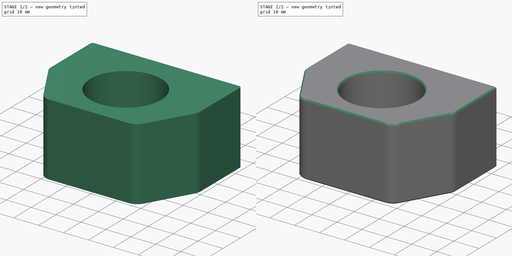
[diagram: build sequence overview — one tinted view per stage of 2, left to right]
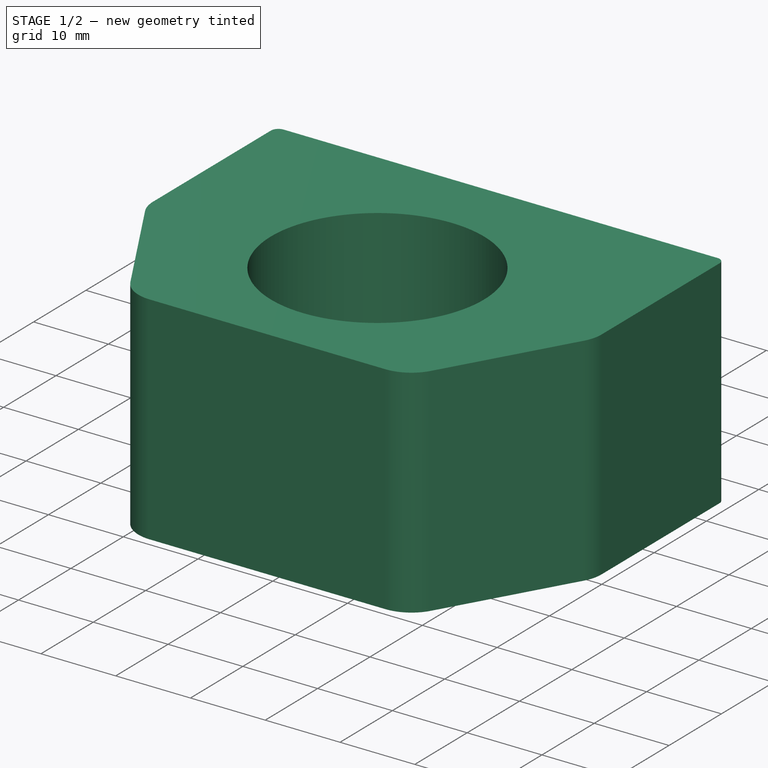
[diagram: stage 1 of 2 — iso view after this stage's code; geometry added in this stage tinted green]
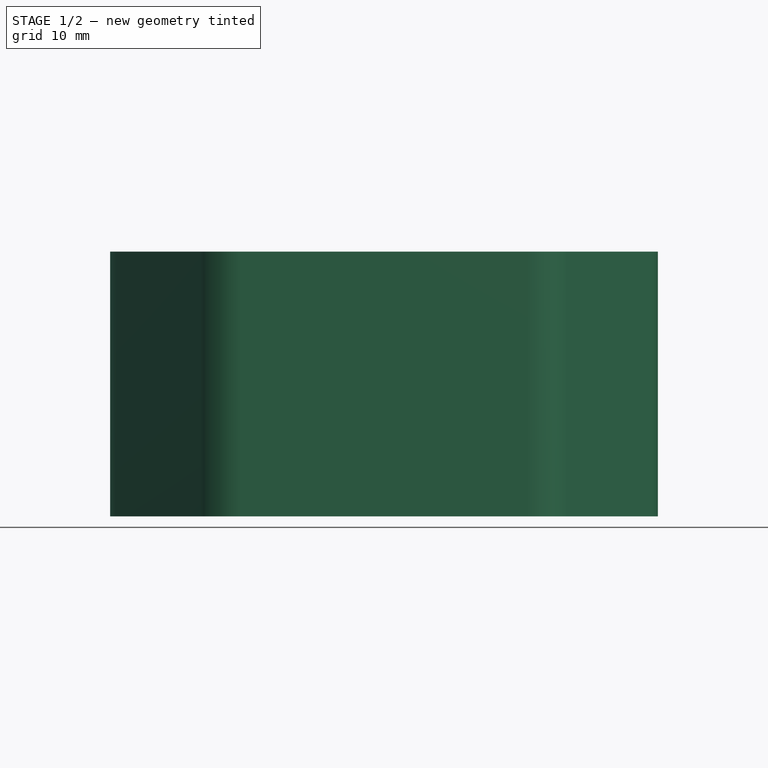
[diagram: stage 1 of 2 — front view after this stage's code; geometry added in this stage tinted green]
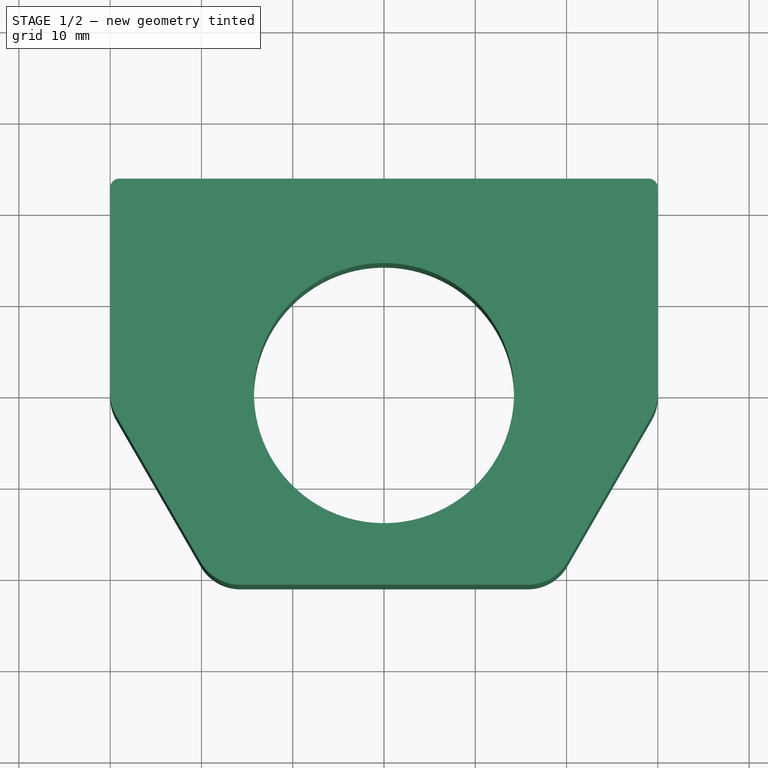
[diagram: stage 1 of 2 — top view after this stage's code; geometry added in this stage tinted green]
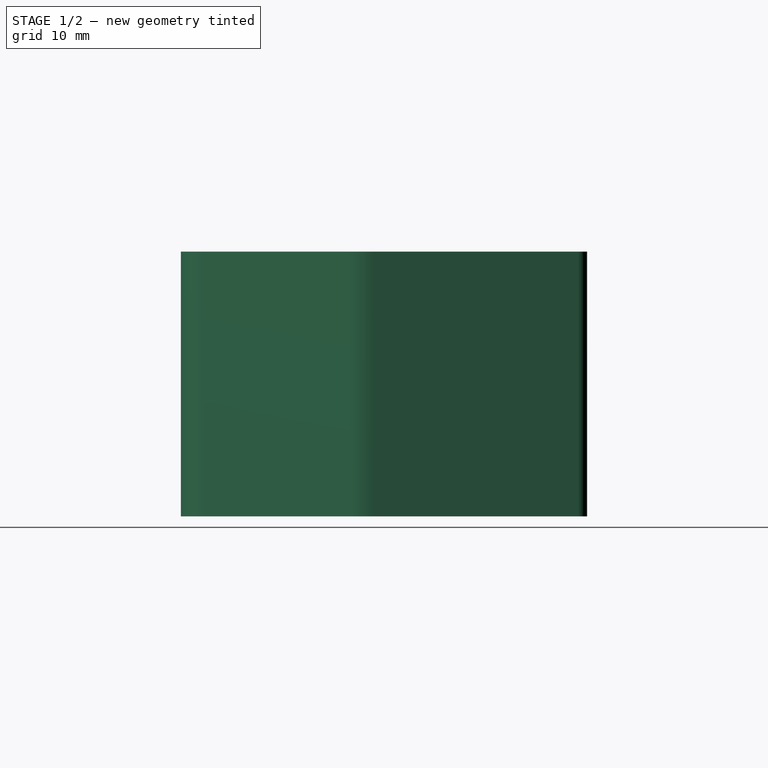
[diagram: stage 1 of 2 — right view after this stage's code; geometry added in this stage tinted green]
FCSTD DOCUMENT  (FreeCAD 0.21R38887 (Git))
Label: КронштейнГайки
License: All rights reserved
LicenseURL: http://en.wikipedia.org/wiki/All_rights_reserved
objects: Sketcher::SketchObject×3, PartDesign::Hole×2, PartDesign::Pad×1, PartDesign::Chamfer×1, PartDesign::Body×1
note: 19 computed .brp shape members not serialized (recipe doc carries the construction recipe); baked Part::Feature solids carry a one-line shape summary decoded from their .brp

FEATURE [Sketcher::SketchObject] Sketch
  ArcFitTolerance = 0
  ExternalBSplineMaxDegree = 0
  ExternalBSplineTolerance = 0
  FullyConstrained = true
  InternalTolerance = 1e-06
  InvalidShape = false
  MakeInternals = false
  MapMode = 2
  TreeRank = 171
  ValidateShape = false
  sketch-geometry (17):
    g0: LineSegment StartX=-29 StartY=23.5 StartZ=0 EndX=29 EndY=23.5 EndZ=0
    g1: LineSegment StartX=-30 StartY=22.5 StartZ=0 EndX=-30 EndY=0 EndZ=0
    g2: LineSegment StartX=30 StartY=22.5 StartZ=0 EndX=30 EndY=0 EndZ=0
    g3: LineSegment StartX=-29.3301 StartY=-2.5 StartZ=0 EndX=-20.0925 EndY=-18.5 EndZ=0
    g4: LineSegment StartX=-15.7624 StartY=-21 StartZ=0 EndX=15.7624 EndY=-21 EndZ=0
    g5: LineSegment StartX=20.0925 StartY=-18.5 StartZ=0 EndX=29.3301 EndY=-2.5 EndZ=0
    g6: Circle CenterX=0 CenterY=0 CenterZ=0 NormalX=0 NormalY=0 NormalZ=1 AngleXU=0 Radius=14.25
    g7: ArcOfCircle CenterX=-15.7624 CenterY=-16 CenterZ=0 NormalX=0 NormalY=0 NormalZ=1 AngleXU=0 Radius=5 StartAngle=3.66519 EndAngle=4.71239
    g8: GeomPoint [constr] X=-18.6491 Y=-21 Z=0
    g9: ArcOfCircle CenterX=15.7624 CenterY=-16 CenterZ=0 NormalX=0 NormalY=0 NormalZ=1 AngleXU=0 Radius=5 StartAngle=4.71239 EndAngle=5.75959
    g10: GeomPoint [constr] X=18.6491 Y=-21 Z=0
    g11: ArcOfCircle CenterX=-25 CenterY=0 CenterZ=0 NormalX=0 NormalY=0 NormalZ=1 AngleXU=0 Radius=5 StartAngle=3.14159 EndAngle=3.66519
    g12: ArcOfCircle CenterX=25 CenterY=0 CenterZ=0 NormalX=0 NormalY=0 NormalZ=1 AngleXU=0 Radius=5 StartAngle=5.75959 EndAngle=6.28319
    g13: ArcOfCircle CenterX=-29 CenterY=22.5 CenterZ=0 NormalX=0 NormalY=0 NormalZ=1 AngleXU=0 Radius=1 StartAngle=1.5708 EndAngle=3.14159
    g14: GeomPoint [constr] X=-30 Y=23.5 Z=0
    g15: ArcOfCircle CenterX=29 CenterY=22.5 CenterZ=0 NormalX=0 NormalY=0 NormalZ=1 AngleXU=0 Radius=1 StartAngle=0 EndAngle=1.5708
    g16: GeomPoint [constr] X=30 Y=23.5 Z=0
  constraints (38):
    c: Vertical(g1)
    c: Vertical(g2)
    c: Coincident(g-1,g6)
    c: Symmetric(g14,g16,g-2)
    c: DistanceX(g14,g16) = 60
    c: Diameter(g6) = 28.5
    c: Distance(g6,g0) = 23.5
    c: Distance(g6,g4) = 21
    c: Angle(g3) = -1.0472
    c: PointOnObject(g8,g3)
    c: PointOnObject(g8,g4)
    c: Tangent(g3,g7) = -1.5708
    c: Tangent(g4,g7) = -1.5708
    c: PointOnObject(g10,g4)
    c: PointOnObject(g10,g5)
    c: Tangent(g4,g9) = -1.5708
    c: Tangent(g5,g9) = -1.5708
    c: Equal(g7,g9)
    c: Radius(g7) = 5
    c: Tangent(g1,g11) = -1.5708
    c: Tangent(g3,g11) = -1.5708
    c: Tangent(g2,g12) = 1.5708
    c: Tangent(g5,g12) = -1.5708
    c: Equal(g11,g12)
    c: Radius(g11) = 5
    c: PointOnObject(g11,g-1)
    c: Symmetric(g4,g4,g-2)
    c: PointOnObject(g14,g1)
    c: PointOnObject(g14,g0)
    c: Tangent(g1,g13) = -1.5708
    c: Tangent(g0,g13) = 1.5708
    c: PointOnObject(g16,g2)
    c: PointOnObject(g16,g0)
    c: Tangent(g2,g15) = 1.5708
    c: Tangent(g0,g15) = 1.5708
    c: Equal(g13,g15)
    c: Radius(g13) = 1
    c: PointOnObject(g12,g-1)
FEATURE [PartDesign::Pad] Pad
  AddSubType = 0
  AlongSketchNormal = false
  AutoTaperInnerAngle = false
  CheckUpToFaceLimits = true
  ClaimChildren = false
  Direction = (0,0,1)
  Fit = 0
  FitJoin = 0
  InnerFit = 0
  InnerFitJoin = 0
  InvalidShape = false
  Length = 29
  Length2 = 100
  Linearize = true
  NewSolid = false
  Profile = -> Sketch
  Suppress = false
  TaperInnerAngle = 0
  TaperInnerAngleRev = 0
  TreeRank = 172
  Type = 0
  ValidateShape = true
  _ProfileBasedVersion = 1
FEATURE [Sketcher::SketchObject] Sketch001
  ArcFitTolerance = 0
  AttachmentSupport = -> [Pad]
  ExternalBSplineMaxDegree = 0
  ExternalBSplineTolerance = 0
  FullyConstrained = true
  InternalTolerance = 1e-06
  InvalidShape = false
  MakeInternals = false
  MapMode = 5
  Placement = pos=(0,0,0) rot=(1,0,0;3.14159rad)
  Support = -> [Pad]
  TreeRank = 173
  ValidateShape = false
  sketch-geometry (15):
    g0: LineSegment [constr] StartX=-19 StartY=0 StartZ=0 EndX=-13.435 EndY=-13.435 EndZ=0
    g1: LineSegment [constr] StartX=-13.435 StartY=-13.435 StartZ=0 EndX=0 EndY=-19 EndZ=0
    g2: LineSegment [constr] StartX=0 StartY=-19 StartZ=0 EndX=13.435 EndY=-13.435 EndZ=0
    g3: LineSegment [constr] StartX=13.435 StartY=-13.435 StartZ=0 EndX=19 EndY=0 EndZ=0
    g4: LineSegment [constr] StartX=19 StartY=0 StartZ=0 EndX=13.435 EndY=13.435 EndZ=0
    g5: LineSegment [constr] StartX=13.435 StartY=13.435 StartZ=0 EndX=0 EndY=19 EndZ=0
    g6: LineSegment [constr] StartX=0 StartY=19 StartZ=0 EndX=-13.435 EndY=13.435 EndZ=0
    g7: LineSegment [constr] StartX=-13.435 StartY=13.435 StartZ=0 EndX=-19 EndY=0 EndZ=0
    g8: Circle [constr] CenterX=0 CenterY=0 CenterZ=0 NormalX=0 NormalY=0 NormalZ=1 AngleXU=0 Radius=19
    g9: Circle CenterX=-19 CenterY=0 CenterZ=0 NormalX=0 NormalY=0 NormalZ=1 AngleXU=0 Radius=2.1
    g10: Circle CenterX=-13.435 CenterY=13.435 CenterZ=0 NormalX=0 NormalY=0 NormalZ=1 AngleXU=0 Radius=2.1
    g11: Circle CenterX=13.435 CenterY=13.435 CenterZ=0 NormalX=0 NormalY=0 NormalZ=1 AngleXU=0 Radius=2.1
    g12: Circle CenterX=19 CenterY=0 CenterZ=0 NormalX=0 NormalY=0 NormalZ=1 AngleXU=0 Radius=2.1
    g13: Circle CenterX=13.435 CenterY=-13.435 CenterZ=0 NormalX=0 NormalY=0 NormalZ=1 AngleXU=0 Radius=2.1
    g14: Circle CenterX=-13.435 CenterY=-13.435 CenterZ=0 NormalX=0 NormalY=0 NormalZ=1 AngleXU=0 Radius=2.1
  constraints (32):
    c: Coincident(g0,g1)
    c: Coincident(g1,g2)
    c: Coincident(g2,g3)
    c: Coincident(g3,g4)
    c: Coincident(g4,g5)
    c: Coincident(g5,g6)
    c: Coincident(g6,g7)
    c: Coincident(g7,g0)
    c: Equal(g0, g1-g7) x7
    c: PointOnObject(g0,g8)
    c: PointOnObject(g1,g8)
    c: PointOnObject(g2,g8)
    c: PointOnObject(g3,g8)
    c: PointOnObject(g4,g8)
    c: PointOnObject(g5,g8)
    c: PointOnObject(g6,g8)
    c: PointOnObject(g7,g8)
    c: Coincident(g8,g-1)
    c: PointOnObject(g7,g-1)
    c: Diameter(g8) = 38
    c: Coincident(g9,g0)
    c: Coincident(g10,g6)
    c: Coincident(g11,g4)
    c: Coincident(g12,g3)
    c: Coincident(g13,g2)
    c: Coincident(g14,g0)
    c: Equal(g9,g10)
    c: Equal(g9,g14)
    c: Equal(g9,g11)
    c: Equal(g9,g12)
    c: Equal(g9,g13)
    c: Diameter(g9) = 4.2
FEATURE [PartDesign::Hole] Hole
  AddSubType = 1
  BaseFeature = -> Pad
  ClaimChildren = false
  CustomThreadClearance = 0
  Depth = 12
  DepthType = 0
  Diameter = 4.2
  DrillForDepth = false
  DrillPoint = 1
  DrillPointAngle = 118
  Fit = 0
  FitJoin = 0
  HoleCutCountersinkAngle = 90
  HoleCutCustomValues = false
  HoleCutDepth = 0
  HoleCutDiameter = 6.1
  HoleCutType = 0
  InnerFit = 0
  InnerFitJoin = 0
  InvalidShape = false
  Linearize = true
  ModelThread = false
  NewSolid = false
  Profile = -> Sketch001
  Suppress = false
  Tapered = false
  TaperedAngle = 90
  ThreadClass = 0
  ThreadDepth = 12
  ThreadDepthType = 0
  ThreadDirection = 0
  ThreadFit = 0
  ThreadSize = 13
  ThreadType = 1
  Threaded = true
  TreeRank = 174
  UseCustomThreadClearance = false
  ValidateShape = true
  _ProfileBasedVersion = 1
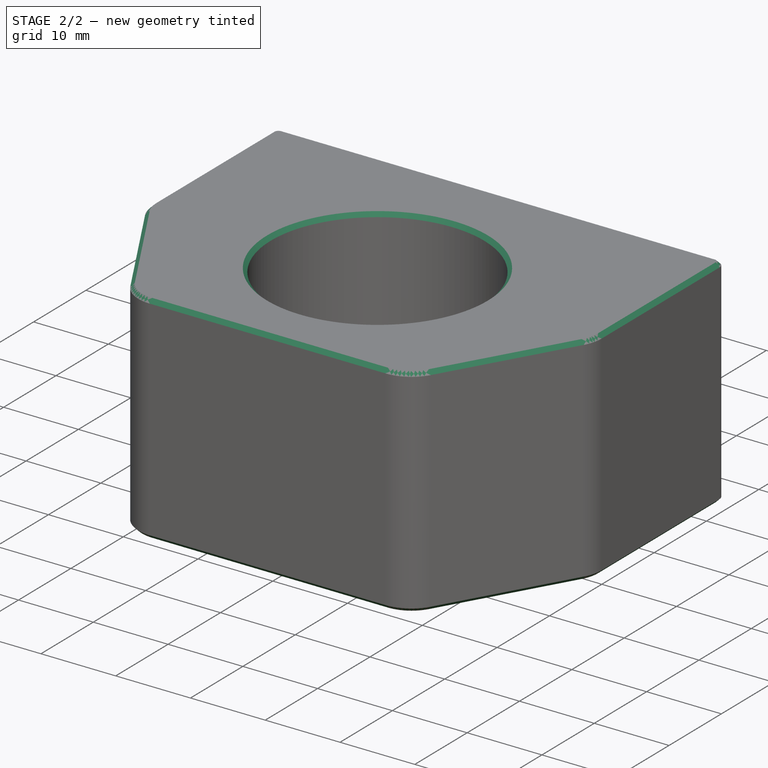
[diagram: stage 2 of 2 — iso view after this stage's code; geometry added in this stage tinted green]
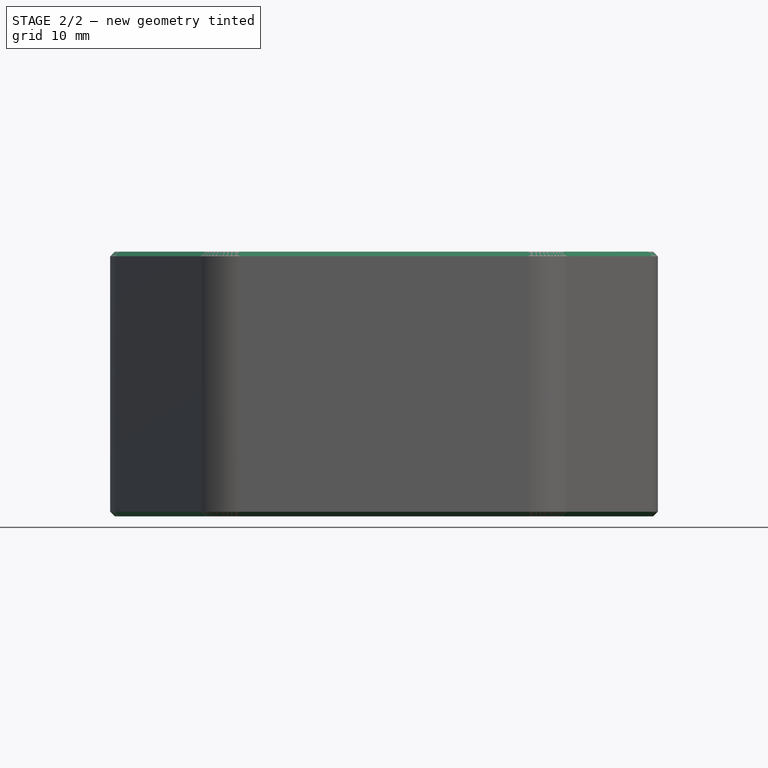
[diagram: stage 2 of 2 — front view after this stage's code; geometry added in this stage tinted green]
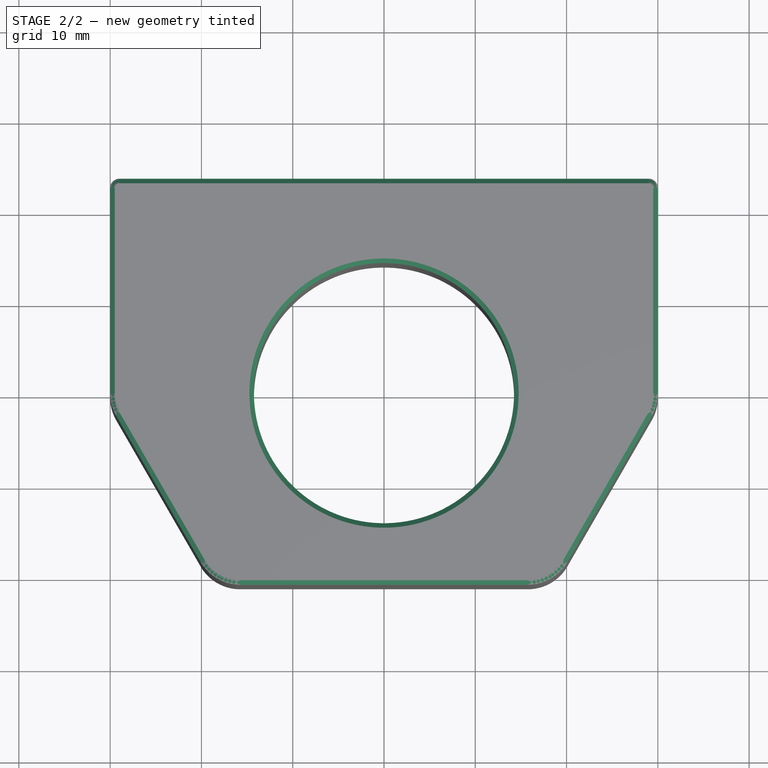
[diagram: stage 2 of 2 — top view after this stage's code; geometry added in this stage tinted green]
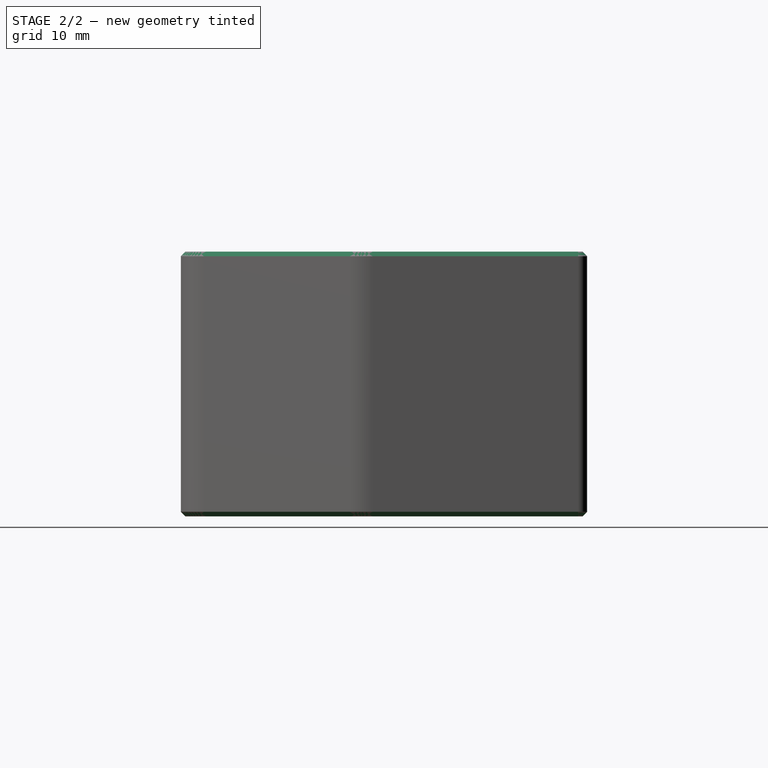
[diagram: stage 2 of 2 — right view after this stage's code; geometry added in this stage tinted green]
FEATURE [Sketcher::SketchObject] Sketch002
  ArcFitTolerance = 0
  AttachmentSupport = -> [Hole]
  ExternalBSplineMaxDegree = 0
  ExternalBSplineTolerance = 0
  FullyConstrained = true
  InternalTolerance = 1e-06
  InvalidShape = false
  MakeInternals = false
  MapMode = 5
  Placement = pos=(-1.4e-15,23.5,0) rot=(0,0.707107,0.707107;3.14159rad)
  Support = -> [Hole]
  TreeRank = 175
  ValidateShape = false
  sketch-geometry (8):
    g0: LineSegment [constr] StartX=-25 StartY=24 StartZ=0 EndX=25 EndY=24 EndZ=0
    g1: LineSegment [constr] StartX=25 StartY=24 StartZ=0 EndX=25 EndY=5 EndZ=0
    g2: LineSegment [constr] StartX=25 StartY=5 StartZ=0 EndX=-25 EndY=5 EndZ=0
    g3: LineSegment [constr] StartX=-25 StartY=5 StartZ=0 EndX=-25 EndY=24 EndZ=0
    g4: Circle CenterX=-25 CenterY=5 CenterZ=0 NormalX=0 NormalY=0 NormalZ=1 AngleXU=0 Radius=2.1
    g5: Circle CenterX=25 CenterY=5 CenterZ=0 NormalX=0 NormalY=0 NormalZ=1 AngleXU=0 Radius=2.1
    g6: Circle CenterX=-25 CenterY=24 CenterZ=0 NormalX=0 NormalY=0 NormalZ=1 AngleXU=0 Radius=2.1
    g7: Circle CenterX=25 CenterY=24 CenterZ=0 NormalX=0 NormalY=0 NormalZ=1 AngleXU=0 Radius=2.1
  constraints (19):
    c: Coincident(g0,g1)
    c: Coincident(g1,g2)
    c: Coincident(g2,g3)
    c: Coincident(g3,g0)
    c: Horizontal(g2)
    c: Vertical(g1)
    c: Vertical(g3)
    c: DistanceX(g0,g0) = 50
    c: DistanceY(g3,g3) = 19
    c: Symmetric(g0,g0,g-2)
    c: DistanceY(g2) = 5
    c: Coincident(g4,g2)
    c: Coincident(g5,g1)
    c: Coincident(g6,g0)
    c: Coincident(g7,g0)
    c: Equal(g6,g4)
    c: Equal(g6,g5)
    c: Equal(g6,g7)
    c: Diameter(g6) = 4.2
FEATURE [PartDesign::Hole] Hole001
  AddSubType = 1
  BaseFeature = -> Hole
  ClaimChildren = false
  CustomThreadClearance = 0
  Depth = 12
  DepthType = 0
  Diameter = 4.2
  DrillForDepth = false
  DrillPoint = 1
  DrillPointAngle = 118
  Fit = 0
  FitJoin = 0
  HoleCutCountersinkAngle = 90
  HoleCutCustomValues = false
  HoleCutDepth = 0
  HoleCutDiameter = 6.1
  HoleCutType = 0
  InnerFit = 0
  InnerFitJoin = 0
  InvalidShape = false
  Linearize = true
  ModelThread = false
  NewSolid = false
  Profile = -> Sketch002
  Suppress = false
  Tapered = false
  TaperedAngle = 90
  ThreadClass = 0
  ThreadDepth = 12
  ThreadDepthType = 0
  ThreadDirection = 0
  ThreadFit = 0
  ThreadSize = 13
  ThreadType = 1
  Threaded = true
  TreeRank = 176
  UseCustomThreadClearance = false
  ValidateShape = true
  _ProfileBasedVersion = 1
FEATURE [PartDesign::Chamfer] Chamfer
  AddSubType = 0
  Angle = 45
  Base = -> Hole001 [Edge27,Edge25,Edge24,Edge29,Edge26,Edge28,Edge30,Edge5,Edge6,Edge8,Edge9,Edge11,Edge10,Edge40]
  BaseFeature = -> Hole001
  ChamferType = 0
  FlipDirection = false
  InvalidShape = false
  NewSolid = false
  Size = 0.5
  Size2 = 1
  SupportTransform = false
  Suppress = false
  TreeRank = 177
  UseAllEdges = false
  ValidateShape = true
FEATURE [PartDesign::Body] Body  label="КронштейнГайкиX"
  AutoGroupSolids = false
  ClaimAllChildren = false
  ExportMode = 0
  Group = -> [Sketch,Pad,Sketch001,Hole,Sketch002,Hole001,Chamfer]
  InvalidShape = false
  Origin = -> Origin
  Tip = -> Chamfer
  TreeRank = 170
  ValidateShape = false
  _ExportChildren = -> [Pad,Hole,Hole001,Chamfer]
  _GroupVersion = 1
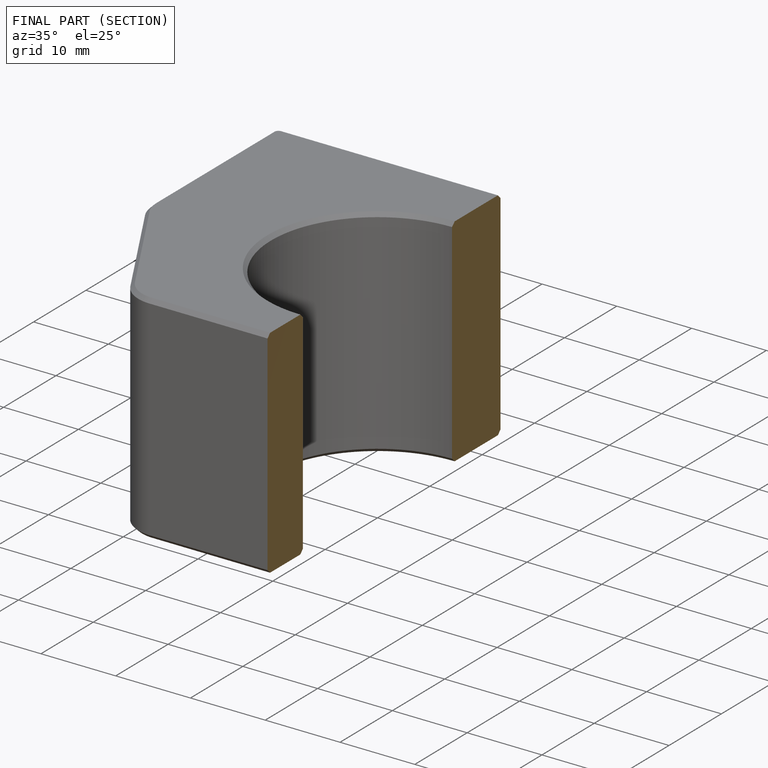
[diagram: finished part — half-section view (interior)]
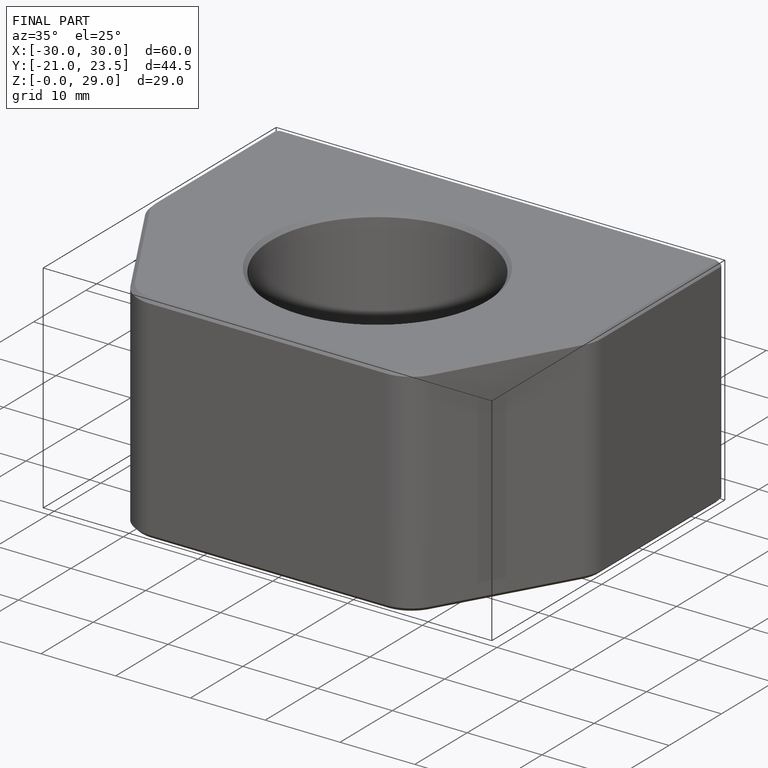
[diagram: finished part — iso view with bounding-box wireframe]
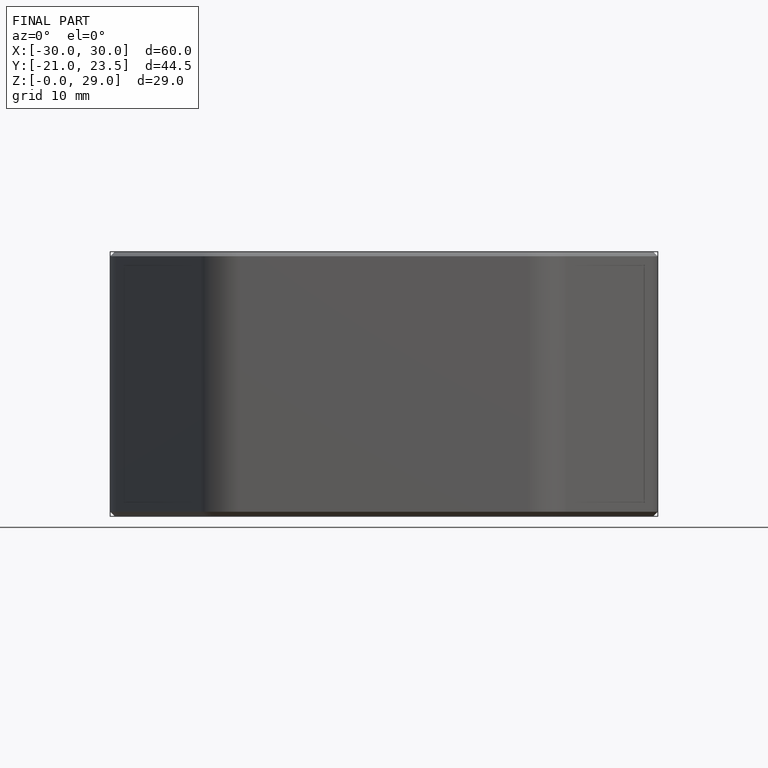
[diagram: finished part — front view with bounding-box wireframe]
